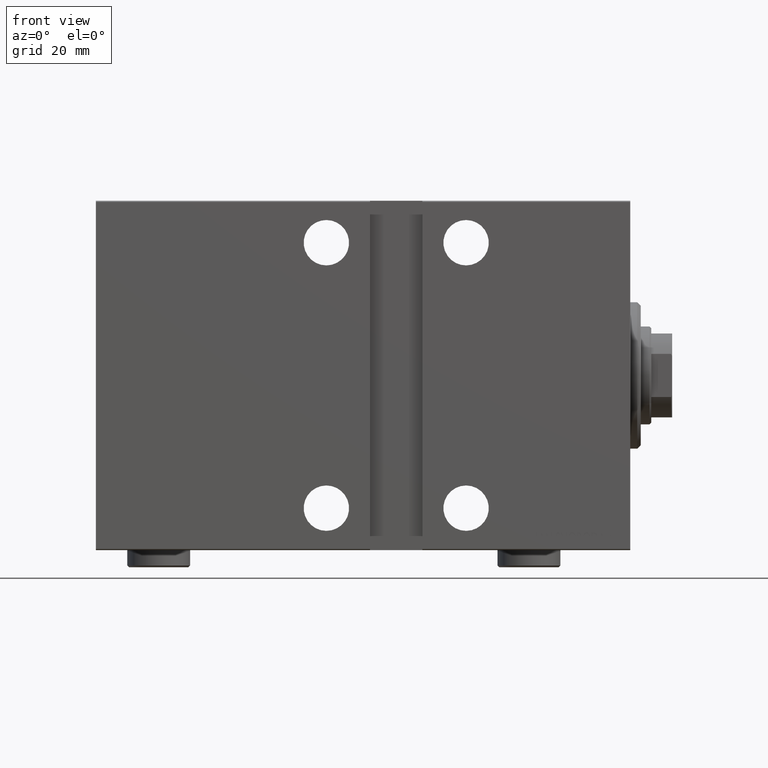
[diagram: clean part render]
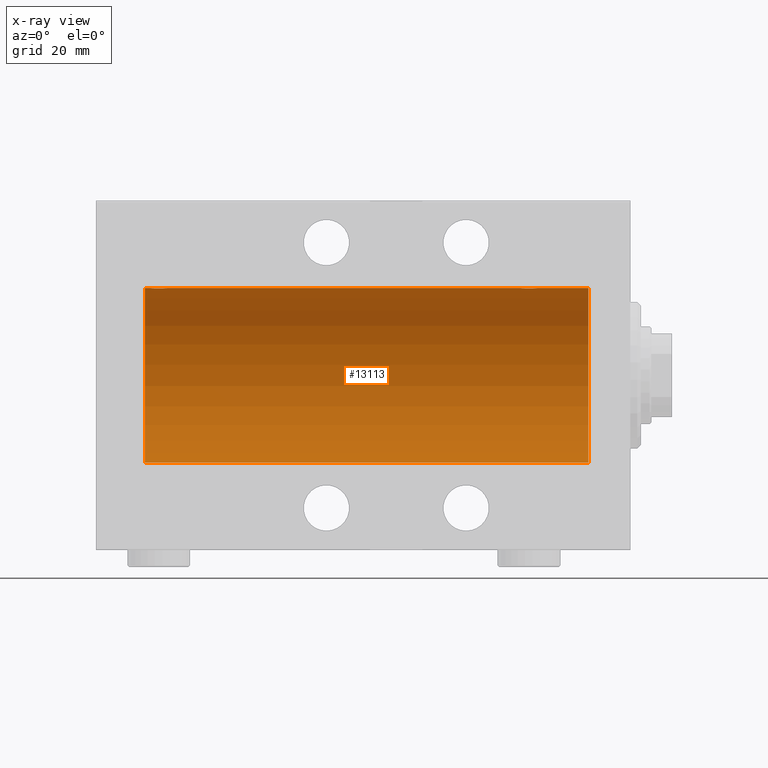
[diagram: x-ray — body ghosted, one internal face saturated and labeled with its STEP entity id]
A machine part, front view, then the same camera in x-ray: the body is ghosted and one INTERNAL B-rep face — a face not visible from any outside direction — is saturated and labeled: STEP entity #13113.
In plain terms, the highlighted cylindrical surface (partial cylindrical patch) has radius 25 mm, axis along (1, 0, -0).
Its self-contained STEP definition (entity closure, byte-faithful):
#301 = ORIENTED_EDGE ( 'NONE', *, *, #2380, .F. ) ;
#329 = AXIS2_PLACEMENT_3D ( 'NONE', #32712, #5127, #18386 ) ;
#770 = CARTESIAN_POINT ( 'NONE',  ( 137.1682764149395268, -1.255214705003177889, 24.96884293994577320 ) ) ;
#993 = CARTESIAN_POINT ( 'NONE',  ( 136.1072384583841313, -2.247417070759885060, 24.89885693081946982 ) ) ;
#1056 = CARTESIAN_POINT ( 'NONE',  ( 31.43349355239747567, -0.6588655613945901823, 24.99312727339969697 ) ) ;
#1224 = CARTESIAN_POINT ( 'NONE',  ( 133.7461680457550131, -2.169003991399856890, 24.90589728951138682 ) ) ;
#1415 = VERTEX_POINT ( 'NONE', #8402 ) ;
#1653 = CARTESIAN_POINT ( 'NONE',  ( 132.6278403059139919, -0.8058335233485485194, 24.98746277938383642 ) ) ;
#2089 = CARTESIAN_POINT ( 'NONE',  ( 30.10723845838409929, -2.247417070759890834, 24.89885693081946272 ) ) ;
#2251 = AXIS2_PLACEMENT_3D ( 'NONE', #20512, #31029, #41141 ) ;
#2303 = CARTESIAN_POINT ( 'NONE',  ( 31.49999999999996447, -0.3305063766663697833, 24.99999999999999645 ) ) ;
#2380 = EDGE_CURVE ( 'NONE', #31203, #19712, #16454, .T. ) ;
#2529 = CARTESIAN_POINT ( 'NONE',  ( 27.74616804575498108, -2.169003991399864439, 24.90589728951138682 ) ) ;
#3040 = LINE ( 'NONE', #27259, #12549 ) ;
#3288 = ORIENTED_EDGE ( 'NONE', *, *, #33719, .T. ) ;
#3457 = LINE ( 'NONE', #27238, #22998 ) ;
#4422 = CARTESIAN_POINT ( 'NONE',  ( 27.88963203491136511, -2.245863995402893831, 24.89899750494197406 ) ) ;
#5021 = CARTESIAN_POINT ( 'NONE',  ( 135.8043566091629941, -2.372734907014162786, 24.88722742718433167 ) ) ;
#5127 = DIRECTION ( 'NONE',  ( -1.000000000000000000, 0.000000000000000000, 0.000000000000000000 ) ) ;
#5457 = CARTESIAN_POINT ( 'NONE',  ( 27.01250184165601809, -1.525407911884361756, 24.95379469572361586 ) ) ;
#5677 = CARTESIAN_POINT ( 'NONE',  ( 27.11587617213528389, -1.651251241585097063, 24.94567559498348430 ) ) ;
#6606 = FACE_OUTER_BOUND ( 'NONE', #13164, .T. ) ;
#6634 = DIRECTION ( 'NONE',  ( -1.000000000000000000, -0.000000000000000000, -0.000000000000000000 ) ) ;
#7164 = DIRECTION ( 'NONE',  ( -1.000000000000000000, -0.000000000000000000, -0.000000000000000000 ) ) ;
#7951 = CARTESIAN_POINT ( 'NONE',  ( 136.8818595414864205, -1.653834020452934483, 24.94550385189584318 ) ) ;
#8176 = CARTESIAN_POINT ( 'NONE',  ( 137.2460637909406671, -1.109818057797406832, 24.97580694515542277 ) ) ;
#8400 = CARTESIAN_POINT ( 'NONE',  ( 134.1921165759419239, -2.371528299825738539, 24.88734287464371064 ) ) ;
#8402 = CARTESIAN_POINT ( 'NONE',  ( 12.00000000000001066, 0.000000000000000000, 25.00000000000000000 ) ) ;
#8833 = CARTESIAN_POINT ( 'NONE',  ( 26.82988709719076681, -1.252049606094334910, 24.96900299967627390 ) ) ;
#9284 = CARTESIAN_POINT ( 'NONE',  ( 26.75239748980449406, -1.106703319666880514, 24.97594585958024282 ) ) ;
#10250 = VECTOR ( 'NONE', #17340, 1000.000000000000000 ) ;
#10753 = ORIENTED_EDGE ( 'NONE', *, *, #16818, .F. ) ;
#11778 = CARTESIAN_POINT ( 'NONE',  ( 132.8298870971908059, -1.252049606094330914, 24.96900299967627745 ) ) ;
#11998 = CARTESIAN_POINT ( 'NONE',  ( 136.5225677434019076, -1.989585286700244149, 24.92087098724766037 ) ) ;
#12206 = CARTESIAN_POINT ( 'NONE',  ( 30.25084023924055288, -2.170728182476714174, 24.90574631553725027 ) ) ;
#12443 = ORIENTED_EDGE ( 'NONE', *, *, #22871, .T. ) ;
#12549 = VECTOR ( 'NONE', #6634, 1000.000000000000000 ) ;
#12646 = CARTESIAN_POINT ( 'NONE',  ( 26.57985090779070703, -0.6480119923854216202, 24.99212088949391131 ) ) ;
#12863 = CARTESIAN_POINT ( 'NONE',  ( 26.51582159942343253, -0.3254210271412220079, 24.99840249400844527 ) ) ;
#12908 = B_SPLINE_CURVE_WITH_KNOTS ( 'NONE', 3,
 ( #31501, #41813, #24774, #39331, #1653, #42482, #11778, #25436, #39117, #15346, #14910, #1224, #28573, #8400, #21409, #42038, #38895, #18049, #35959, #35087, #5021, #993, #38673, #11998, #29014, #7951, #22062, #770, #8176, #21626, #31722, #35311 ),
 .UNSPECIFIED., .F., .F.,
 ( 4, 2, 2, 2, 2, 2, 2, 2, 2, 2, 2, 2, 2, 2, 2, 4 ),
 ( 0.007821024441662306759, 0.008309723826317914896, 0.008798423210973523034, 0.009287122595629131172, 0.009775821980284739310, 0.01026452136494034745, 0.01075322074959595559, 0.01124192013425156372, 0.01173061951890717186, 0.01221931890356278000, 0.01270801828821838814, 0.01319671767287399627, 0.01368541705752960441, 0.01417411644218521255, 0.01466281582684082069, 0.01564021459615200227 ),
 .UNSPECIFIED. ) ;
#13113 = ADVANCED_FACE ( 'NONE', ( #6606 ), #34186, .F. ) ;
#13164 = EDGE_LOOP ( 'NONE', ( #38819, #32537, #38891, #20049, #12443, #10753, #3288, #301 ) ) ;
#13396 = CARTESIAN_POINT ( 'NONE',  ( 26.50000000000000355, -1.940518940753166940E-23, 25.00000000000000000 ) ) ;
#14318 = DIRECTION ( 'NONE',  ( 0.000000000000000000, 0.000000000000000000, 1.000000000000000000 ) ) ;
#14910 = CARTESIAN_POINT ( 'NONE',  ( 133.4746381775692043, -1.987446652080248732, 24.92104239223420592 ) ) ;
#14946 = VERTEX_POINT ( 'NONE', #13396 ) ;
#15346 = CARTESIAN_POINT ( 'NONE',  ( 133.3461666385065882, -1.881857718844712313, 24.92933960374834257 ) ) ;
#15566 = CARTESIAN_POINT ( 'NONE',  ( 29.64560666148631896, -2.420689345803753501, 24.88254961038874313 ) ) ;
#16148 = EDGE_CURVE ( 'NONE', #43388, #39366, #24422, .T. ) ;
#16227 = CARTESIAN_POINT ( 'NONE',  ( 29.16323589638542657, -2.500125740978187849, 24.87467329022545570 ) ) ;
#16454 = LINE ( 'NONE', #37077, #10250 ) ;
#16701 = CIRCLE ( 'NONE', #22422, 25.00000000000000000 ) ;
#16818 = EDGE_CURVE ( 'NONE', #26740, #39139, #3457, .T. ) ;
#16988 = CARTESIAN_POINT ( 'NONE',  ( 12.00000000000001066, 3.061616997868383043E-15, -25.00000000000000000 ) ) ;
#17340 = DIRECTION ( 'NONE',  ( -1.000000000000000000, -0.000000000000000000, -0.000000000000000000 ) ) ;
#17452 = CARTESIAN_POINT ( 'NONE',  ( 139.0000000000000000, 0.000000000000000000, 0.000000000000000000 ) ) ;
#18049 = CARTESIAN_POINT ( 'NONE',  ( 135.1632358963854585, -2.500125740978183853, 24.87467329022545570 ) ) ;
#18107 = CARTESIAN_POINT ( 'NONE',  ( 29.80435660916301543, -2.372734907014168115, 24.88722742718433878 ) ) ;
#18386 = DIRECTION ( 'NONE',  ( 0.000000000000000000, 0.000000000000000000, 1.000000000000000000 ) ) ;
#19149 = CARTESIAN_POINT ( 'NONE',  ( 28.19211657594194520, -2.371528299825740760, 24.88734287464371420 ) ) ;
#19362 = CARTESIAN_POINT ( 'NONE',  ( 30.52256774340189338, -1.989585286700240596, 24.92087098724766747 ) ) ;
#19677 = CIRCLE ( 'NONE', #329, 25.00000000000000000 ) ;
#19712 = VERTEX_POINT ( 'NONE', #34413 ) ;
#20049 = ORIENTED_EDGE ( 'NONE', *, *, #26732, .F. ) ;
#20512 = CARTESIAN_POINT ( 'NONE',  ( 139.0000000000000000, 0.000000000000000000, 0.000000000000000000 ) ) ;
#21409 = CARTESIAN_POINT ( 'NONE',  ( 134.3509560983090978, -2.419770561643896922, 24.88263927071751880 ) ) ;
#21626 = CARTESIAN_POINT ( 'NONE',  ( 137.4334935523974934, -0.6588655613945783029, 24.99312727339971119 ) ) ;
#21680 = EDGE_CURVE ( 'NONE', #43388, #31203, #16701, .T. ) ;
#22062 = CARTESIAN_POINT ( 'NONE',  ( 136.9853803371709375, -1.528152964861306584, 24.95362559291379156 ) ) ;
#22422 = AXIS2_PLACEMENT_3D ( 'NONE', #17452, #41664, #14318 ) ;
#22491 = CARTESIAN_POINT ( 'NONE',  ( 31.16827641493956591, -1.255214705003181441, 24.96884293994578030 ) ) ;
#22871 = EDGE_CURVE ( 'NONE', #14946, #39139, #36525, .T. ) ;
#22998 = VECTOR ( 'NONE', #37778, 1000.000000000000000 ) ;
#24422 = LINE ( 'NONE', #35178, #30170 ) ;
#24774 = CARTESIAN_POINT ( 'NONE',  ( 132.5158215994234752, -0.3254210271412192879, 24.99840249400844527 ) ) ;
#25049 = CARTESIAN_POINT ( 'NONE',  ( 26.62784030591393147, -0.8058335233485444116, 24.98746277938383642 ) ) ;
#25436 = CARTESIAN_POINT ( 'NONE',  ( 133.0125018416560465, -1.525407911884357093, 24.95379469572362297 ) ) ;
#25625 = EDGE_CURVE ( 'NONE', #39366, #1415, #19677, .T. ) ;
#25869 = CARTESIAN_POINT ( 'NONE',  ( 31.24606379094066710, -1.109818057797416824, 24.97580694515542632 ) ) ;
#26085 = CARTESIAN_POINT ( 'NONE',  ( 30.88185954148645251, -1.653834020452935816, 24.94550385189585029 ) ) ;
#26732 = EDGE_CURVE ( 'NONE', #14946, #1415, #3040, .T. ) ;
#26740 = VERTEX_POINT ( 'NONE', #37347 ) ;
#26956 = CARTESIAN_POINT ( 'NONE',  ( 139.0000000000000000, 3.061616997868383043E-15, -25.00000000000000000 ) ) ;
#27238 = CARTESIAN_POINT ( 'NONE',  ( 139.0000000000000000, 0.000000000000000000, 25.00000000000000000 ) ) ;
#27259 = CARTESIAN_POINT ( 'NONE',  ( 139.0000000000000000, 0.000000000000000000, 25.00000000000000000 ) ) ;
#28573 = CARTESIAN_POINT ( 'NONE',  ( 133.8896320349114148, -2.245863995402891611, 24.89899750494197761 ) ) ;
#28881 = CARTESIAN_POINT ( 'NONE',  ( 31.50000000000000000, -6.470145921101463186E-15, 25.00000000000000000 ) ) ;
#29014 = CARTESIAN_POINT ( 'NONE',  ( 136.6512113355911140, -1.884161199660612240, 24.92916496727982079 ) ) ;
#29446 = CARTESIAN_POINT ( 'NONE',  ( 28.35095609830903740, -2.419770561643901363, 24.88263927071751169 ) ) ;
#30170 = VECTOR ( 'NONE', #7164, 1000.000000000000000 ) ;
#31029 = DIRECTION ( 'NONE',  ( -1.000000000000000000, -0.000000000000000000, -0.000000000000000000 ) ) ;
#31203 = VERTEX_POINT ( 'NONE', #41018 ) ;
#31501 = CARTESIAN_POINT ( 'NONE',  ( 132.5000000000000000, -1.941505016884693205E-23, 25.00000000000000000 ) ) ;
#31722 = CARTESIAN_POINT ( 'NONE',  ( 137.5000000000000284, -0.3305063766663746128, 25.00000000000000711 ) ) ;
#31780 = CARTESIAN_POINT ( 'NONE',  ( 30.65121133559111755, -1.884161199660612906, 24.92916496727982434 ) ) ;
#32537 = ORIENTED_EDGE ( 'NONE', *, *, #16148, .T. ) ;
#32712 = CARTESIAN_POINT ( 'NONE',  ( 12.00000000000001066, 0.000000000000000000, 0.000000000000000000 ) ) ;
#32821 = CARTESIAN_POINT ( 'NONE',  ( 28.83293504821939024, -2.499872792855073467, 24.87469871246082675 ) ) ;
#33035 = CARTESIAN_POINT ( 'NONE',  ( 30.98538033717094464, -1.528152964861309915, 24.95362559291378801 ) ) ;
#33719 = EDGE_CURVE ( 'NONE', #26740, #19712, #12908, .T. ) ;
#34186 = CYLINDRICAL_SURFACE ( 'NONE', #2251, 25.00000000000000000 ) ;
#34413 = CARTESIAN_POINT ( 'NONE',  ( 137.5000000000000000, 9.792438154224103788E-16, 25.00000000000000000 ) ) ;
#35087 = CARTESIAN_POINT ( 'NONE',  ( 135.6456066614863403, -2.420689345803753501, 24.88254961038873603 ) ) ;
#35140 = CARTESIAN_POINT ( 'NONE',  ( 26.50000000000000355, -1.940518940753166940E-23, 25.00000000000000000 ) ) ;
#35178 = CARTESIAN_POINT ( 'NONE',  ( 139.0000000000000000, 3.061616997868383043E-15, -25.00000000000000000 ) ) ;
#35311 = CARTESIAN_POINT ( 'NONE',  ( 137.5000000000000000, 9.792438154224103788E-16, 25.00000000000000000 ) ) ;
#35959 = CARTESIAN_POINT ( 'NONE',  ( 135.3259657003945904, -2.484007091859755434, 24.87630842367763151 ) ) ;
#36525 = B_SPLINE_CURVE_WITH_KNOTS ( 'NONE', 3,
 ( #35140, #42917, #12863, #12646, #25049, #9284, #8833, #5457, #5677, #43358, #36619, #2529, #4422, #19149, #29446, #42098, #32821, #16227, #39328, #15566, #18107, #2089, #12206, #19362, #31780, #26085, #33035, #22491, #25869, #1056, #2303, #39772 ),
 .UNSPECIFIED., .F., .F.,
 ( 4, 2, 2, 2, 2, 2, 2, 2, 2, 2, 2, 2, 2, 2, 2, 4 ),
 ( 0.007821024441662268595, 0.008309723826317871528, 0.008798423210973474462, 0.009287122595629077396, 0.009775821980284680329, 0.01026452136494028326, 0.01075322074959588620, 0.01124192013425148913, 0.01173061951890709206, 0.01221931890356269326, 0.01270801828821829793, 0.01319671767287389913, 0.01368541705752950380, 0.01417411644218510500, 0.01466281582684070967, 0.01564021459615191553 ),
 .UNSPECIFIED. ) ;
#36619 = CARTESIAN_POINT ( 'NONE',  ( 27.47463817756919724, -1.987446652080258724, 24.92104239223420947 ) ) ;
#37077 = CARTESIAN_POINT ( 'NONE',  ( 139.0000000000000000, 0.000000000000000000, 25.00000000000000000 ) ) ;
#37347 = CARTESIAN_POINT ( 'NONE',  ( 132.5000000000000000, -1.941505016884693205E-23, 25.00000000000000000 ) ) ;
#37778 = DIRECTION ( 'NONE',  ( -1.000000000000000000, -0.000000000000000000, -0.000000000000000000 ) ) ;
#38673 = CARTESIAN_POINT ( 'NONE',  ( 136.2508402392405458, -2.170728182476716839, 24.90574631553725027 ) ) ;
#38819 = ORIENTED_EDGE ( 'NONE', *, *, #21680, .F. ) ;
#38891 = ORIENTED_EDGE ( 'NONE', *, *, #25625, .T. ) ;
#38895 = CARTESIAN_POINT ( 'NONE',  ( 134.8329350482193831, -2.499872792855069470, 24.87469871246082675 ) ) ;
#39117 = CARTESIAN_POINT ( 'NONE',  ( 133.1158761721353017, -1.651251241585098395, 24.94567559498349141 ) ) ;
#39139 = VERTEX_POINT ( 'NONE', #28881 ) ;
#39328 = CARTESIAN_POINT ( 'NONE',  ( 29.32596570039460104, -2.484007091859757654, 24.87630842367763861 ) ) ;
#39331 = CARTESIAN_POINT ( 'NONE',  ( 132.5798509077906999, -0.6480119923854186226, 24.99212088949390420 ) ) ;
#39366 = VERTEX_POINT ( 'NONE', #16988 ) ;
#39772 = CARTESIAN_POINT ( 'NONE',  ( 31.50000000000000000, -6.470145921101463186E-15, 25.00000000000000000 ) ) ;
#41018 = CARTESIAN_POINT ( 'NONE',  ( 139.0000000000000000, 0.000000000000000000, 25.00000000000000000 ) ) ;
#41141 = DIRECTION ( 'NONE',  ( 0.000000000000000000, 0.000000000000000000, 1.000000000000000000 ) ) ;
#41664 = DIRECTION ( 'NONE',  ( -1.000000000000000000, 0.000000000000000000, 0.000000000000000000 ) ) ;
#41813 = CARTESIAN_POINT ( 'NONE',  ( 132.4999999999999716, -0.1631750940176176501, 25.00000000000000711 ) ) ;
#42038 = CARTESIAN_POINT ( 'NONE',  ( 134.6705231988572962, -2.483544361357258978, 24.87635491893502149 ) ) ;
#42098 = CARTESIAN_POINT ( 'NONE',  ( 28.67052319885732103, -2.483544361357262531, 24.87635491893501793 ) ) ;
#42482 = CARTESIAN_POINT ( 'NONE',  ( 132.7523974898045083, -1.106703319666884733, 24.97594585958023217 ) ) ;
#42917 = CARTESIAN_POINT ( 'NONE',  ( 26.50000000000000711, -0.1631750940176204812, 25.00000000000000711 ) ) ;
#43358 = CARTESIAN_POINT ( 'NONE',  ( 27.34616663850663087, -1.881857718844711869, 24.92933960374833902 ) ) ;
#43388 = VERTEX_POINT ( 'NONE', #26956 ) ;